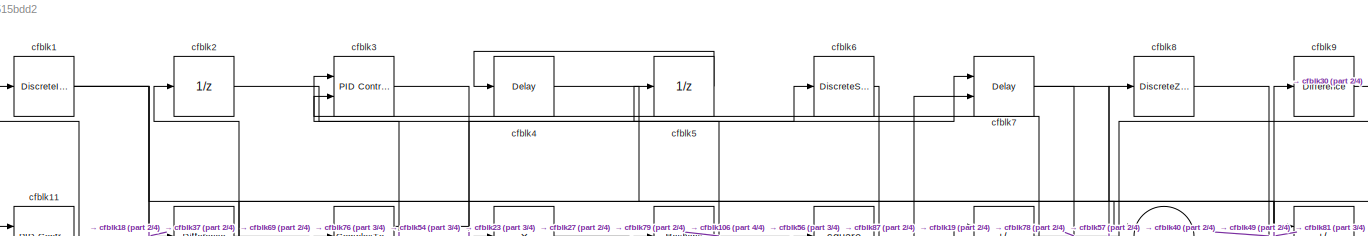
[diagram: root canvas - part 1/4, full width, top band]
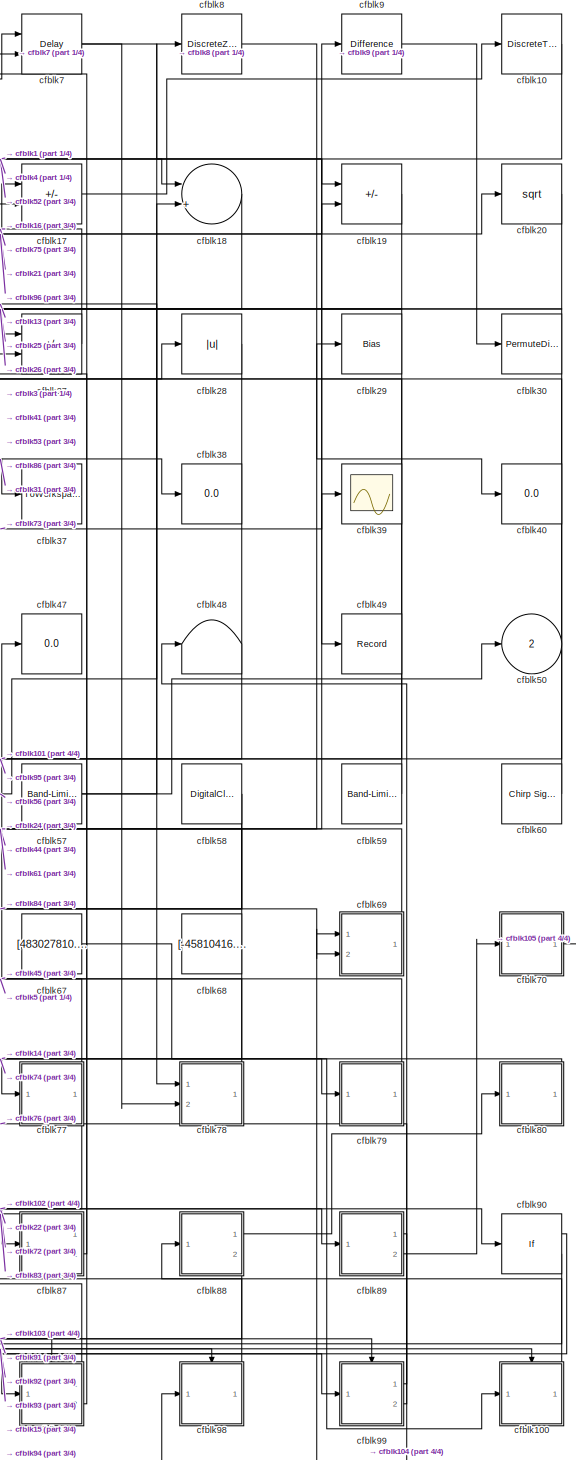
[diagram: root canvas - part 2/4, right side, full height]
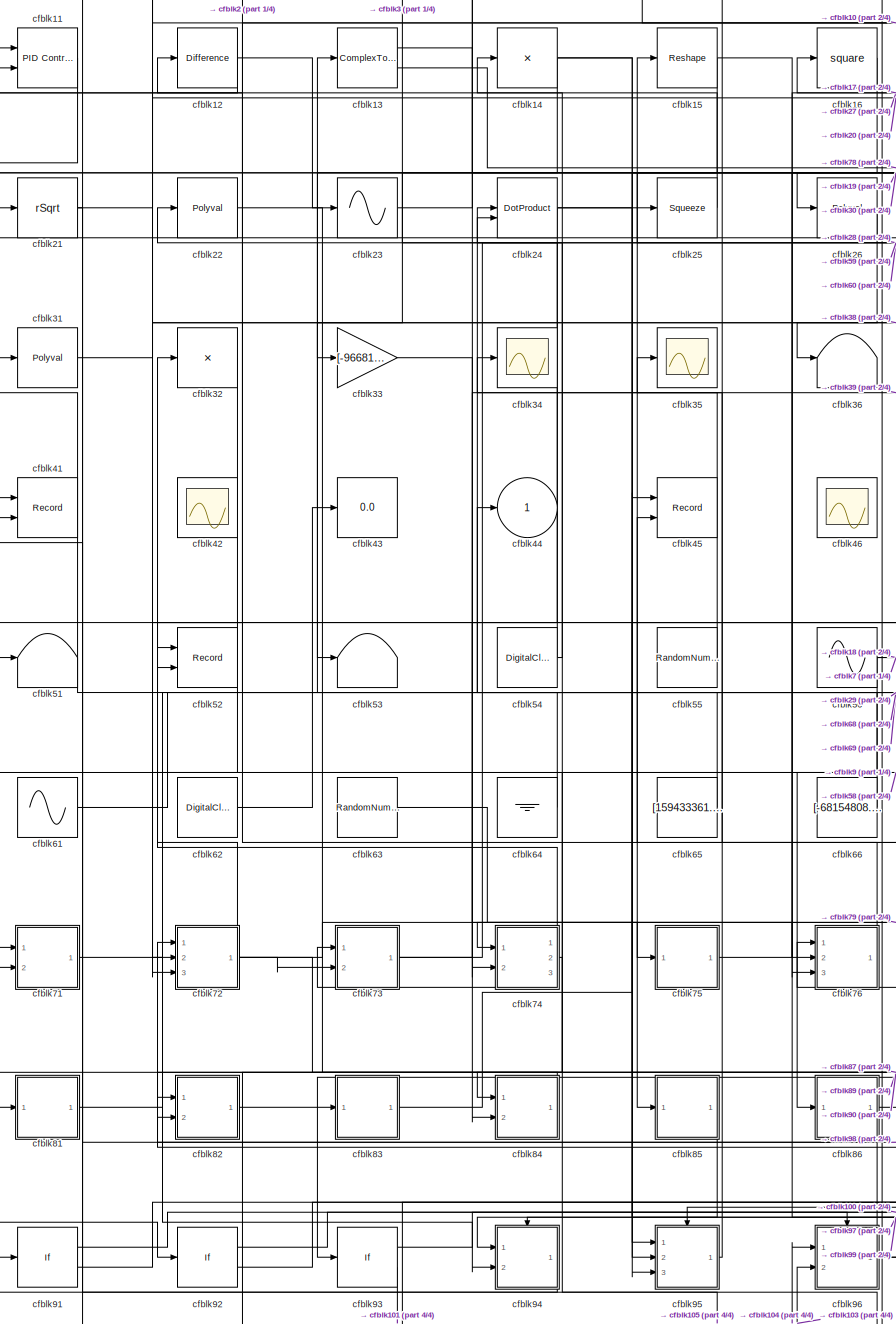
[diagram: root canvas - part 3/4, left side, full height]
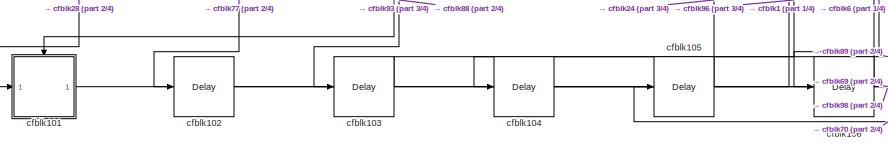
[diagram: root canvas - part 4/4, bottom left region]
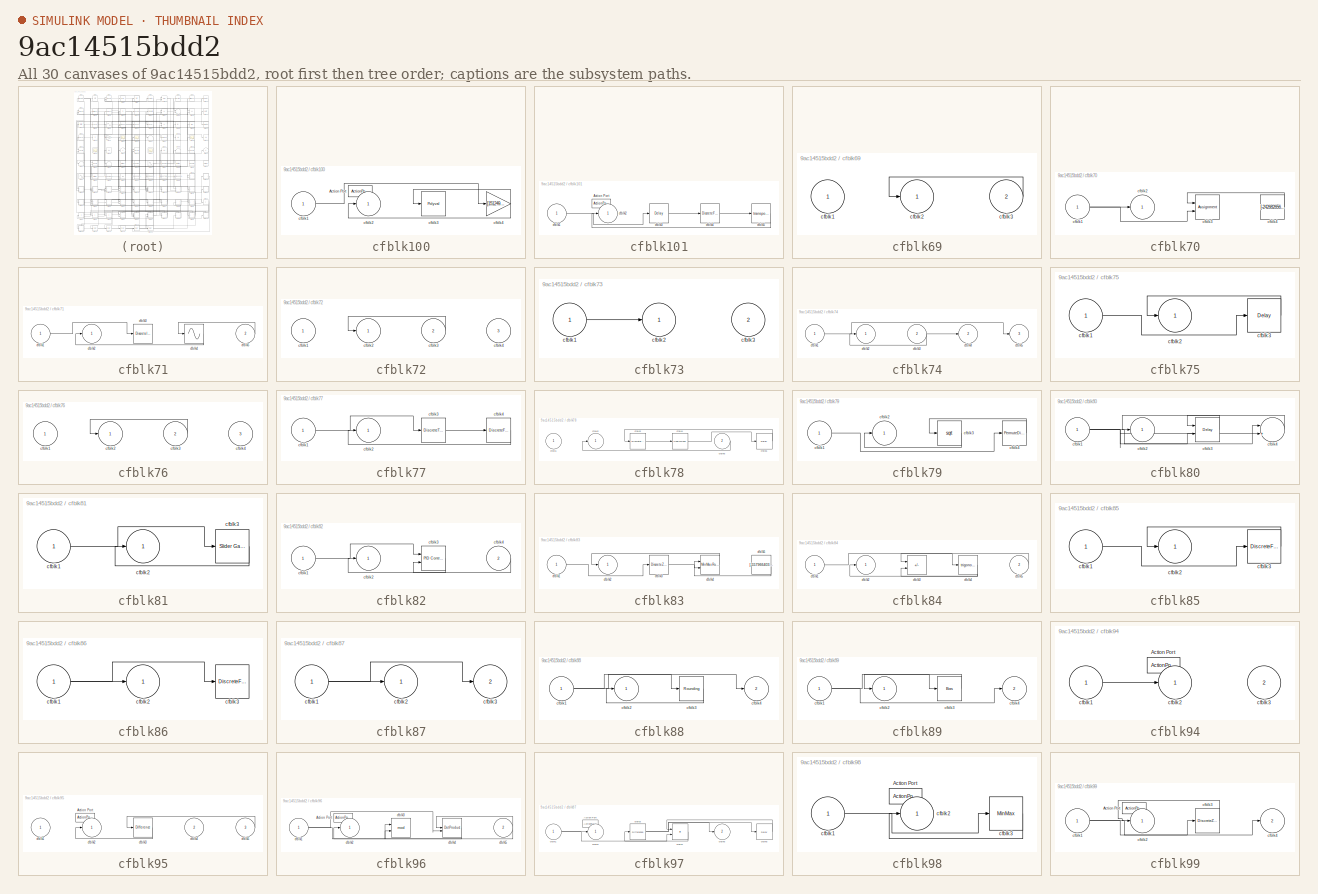
[diagram: thumbnail index - all 30 canvases of the model, root first then tree order]
MODEL slx_9ac14515bdd2
KIND model
CONFIG AbsTol = auto
CONFIG EnableMultiTasking = off
CONFIG FixedStep = auto
CONFIG MaxStep = auto
CONFIG MinStep = auto
CONFIG RelTol = 1e-3
CONFIG SampleTimeConstraint = Unconstrained
CONFIG SolverName = VariableStepAuto
CONFIG StartTime = 0.0
CONFIG StopTime = 10.0
BLOCK [DiscreteIntegrator] cfblk1
  ICPrevOutput = DiscIntNeverNeededParam
  ICPrevScaledInput = DiscIntNeverNeededParam
  InitialConditionSetting = Auto
  Ports = [1, 1]
BLOCK [DiscreteTransferFcn] cfblk10
  InputPortMap = u0
  Ports = [1, 1]
  SampleTime = 1
BLOCK [SubSystem] cfblk100
  Ports = [1, 1, 0, 0, 0, 0, 0, 1]
  RequestExecContextInheritance = off
  TreatAsAtomicUnit = on
BLOCK [ActionPort] cfblk100/Action Port
  ActionPortLabel = if(u1 >= 0)
BLOCK [Inport] cfblk100/cfblk1
BLOCK [Outport] cfblk100/cfblk2
BLOCK [Polyval] cfblk100/cfblk3
  Coefs = [ +2.081618890e-019, -1.441693666e-014, +4.719686976e-010, -8.536869453e-006, +1.621573104e-001, -8.087801117e+001 ]
BLOCK [Gain] cfblk100/cfblk4
  Gain = [151249803.852213]
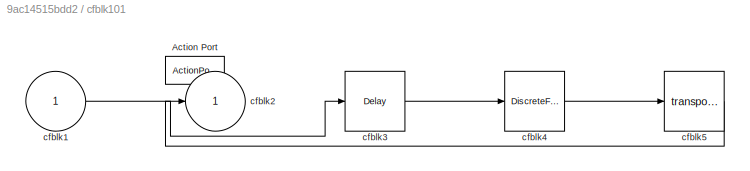
BLOCK [SubSystem] cfblk101
  Ports = [1, 1, 0, 0, 0, 0, 0, 1]
  RequestExecContextInheritance = off
  TreatAsAtomicUnit = on
BLOCK [ActionPort] cfblk101/Action Port
  ActionPortLabel = else
BLOCK [Inport] cfblk101/cfblk1
BLOCK [Outport] cfblk101/cfblk2
BLOCK [Delay] cfblk101/cfblk3
  InputPortMap = u0
  Ports = [1, 1]
BLOCK [DiscreteFilter] cfblk101/cfblk4
  InputPortMap = u0
  Ports = [1, 1]
BLOCK [Math] cfblk101/cfblk5
  Operator = transpose
  Ports = [1, 1]
BLOCK [Delay] cfblk102
  InputPortMap = u0
  Ports = [1, 1]
  SampleTime = 1
BLOCK [Delay] cfblk103
  InputPortMap = u0
  Ports = [1, 1]
  SampleTime = 1
BLOCK [Delay] cfblk104
  InputPortMap = u0
  Ports = [1, 1]
  SampleTime = 1
BLOCK [Delay] cfblk105
  InputPortMap = u0
  Ports = [1, 1]
  SampleTime = 1
BLOCK [Delay] cfblk106
  InputPortMap = u0
  Ports = [1, 1]
  SampleTime = 1
BLOCK [Reference] cfblk11  REF=slpidlib/PID Controller (2DOF)
  Ports = [2, 1]
  SourceBlock = slpidlib/PID Controller (2DOF)
  SourceProductBaseCode = SL
  SourceType = PID 2dof
BLOCK [Reference] cfblk12  REF=simulink/Discrete/Difference
  Ports = [1, 1]
  SourceBlock = simulink/Discrete/Difference
  SourceProductBaseCode = SL
  SourceType = Difference
BLOCK [ComplexToRealImag] cfblk13
  Ports = [1, 2]
BLOCK [Product] cfblk14
  Inputs = *
  Ports = [1, 1]
BLOCK [Reshape] cfblk15
  Ports = [1, 1]
BLOCK [Math] cfblk16
  Operator = square
  Ports = [1, 1]
BLOCK [Sum] cfblk17
  IconShape = rectangular
  Inputs = +-
  Ports = [2, 1]
BLOCK [Sum] cfblk18
  Inputs = |++
  Ports = [2, 1]
BLOCK [Sum] cfblk19
  IconShape = rectangular
  Inputs = +-
  Ports = [2, 1]
BLOCK [UnitDelay] cfblk2
  HasFrameUpgradeWarning = on
BLOCK [Sqrt] cfblk20
BLOCK [Sqrt] cfblk21
  AlgorithmType = Newton-Raphson
  Operator = rSqrt
BLOCK [Polyval] cfblk22
  Coefs = [ +2.081618890e-019, -1.441693666e-014, +4.719686976e-010, -8.536869453e-006, +1.621573104e-001, -8.087801117e+001 ]
BLOCK [Sin] cfblk23
  Ports = [1, 1]
  SampleTime = 0
  TimeSource = Use external signal
BLOCK [DotProduct] cfblk24
  OutDataTypeStr = Inherit: Inherit via internal rule
BLOCK [Squeeze] cfblk25
BLOCK [Polyval] cfblk26
  Coefs = [ +2.081618890e-019, -1.441693666e-014, +4.719686976e-010, -8.536869453e-006, +1.621573104e-001, -8.087801117e+001 ]
BLOCK [Sum] cfblk27
  IconShape = rectangular
  Inputs = +-
  Ports = [2, 1]
BLOCK [Abs] cfblk28
  SaturateOnIntegerOverflow = off
BLOCK [Bias] cfblk29
  Bias = [873647244.687193]
  SaturateOnIntegerOverflow = off
BLOCK [Reference] cfblk3  REF=slpidlib/PID Controller (2DOF)
  Ports = [2, 1]
  SourceBlock = slpidlib/PID Controller (2DOF)
  SourceProductBaseCode = SL
  SourceType = PID 2dof
BLOCK [PermuteDimensions] cfblk30
BLOCK [Polyval] cfblk31
  Coefs = [ +2.081618890e-019, -1.441693666e-014, +4.719686976e-010, -8.536869453e-006, +1.621573104e-001, -8.087801117e+001 ]
BLOCK [Product] cfblk32
  Inputs = *
  Ports = [1, 1]
BLOCK [Gain] cfblk33
  Gain = [-96681866.756885]
BLOCK [Scope] cfblk34
  Floating = off
  NumInputPorts = 1
  Ports = [1]
BLOCK [Scope] cfblk35
  Floating = off
  NumInputPorts = 1
  Ports = [1]
BLOCK [Terminator] cfblk36
BLOCK [ToWorkspace] cfblk37
  FixptAsFi = on
  MaxDataPoints = inf
  Ports = [1]
  SampleTime = -1
  SaveFormat = Timeseries
  VariableName = dttvtfs
BLOCK [Display] cfblk38
  Decimation = 1
  Ports = [1]
BLOCK [Scope] cfblk39
  Floating = off
  NumInputPorts = 1
  Ports = [1]
BLOCK [Delay] cfblk4
  InputPortMap = u0
  Ports = [1, 1]
  SampleTime = 1
BLOCK [Display] cfblk40
  Decimation = 1
  Ports = [1]
BLOCK [Record] cfblk41
  CompatibilityTag = XY
  FileSettingsInternal = {"entries":[{"content":{"excelSettings":{"content":{},"type":"Streamout.ExcelSettings"}},"type":"Streamout.FileSettingStorage","uuid":"677ef7f0-aff7-4f23-a399-6c1ba6bb11ad"}],"packageUris":["http://schema.mathworks.com/mf0/streamout_blocks/R2020a"],"version":"1.0"}
  Layout = [1 1]
  Ports = [2]
  SignalsInternal = {"entries":[{"content":{"signals":[{"content":{"blockPath":["sampleModel149/cfblk41"],"channel":[],"dimensions":[1],"domain":"sampleModel149/cfblk41","lineColor":"#a2142f","plots":[1],"port":1,"sid":[""],"signalID":5432,"signalName":"cfblk19"},"type":"RecordBlkView.Signal","uuid":"c9c64e99-b97b-4934-8607-4a52140b3292"},{"content":{"blockPath":["sampleModel149/cfblk41"],"channel":[],"dimensions":[1...<+385ch>
  VisualizationBindings = {"xyplotplugin":{"info":[{"series":[{"bindingParametersList":[{"parameter":"X-Axis","signalID":5432,"signalName":"cfblk19"},{"parameter":"Y-Axis","signalID":5436,"signalName":"cfblk98"}],"seriesID":11011}],"subplotID":1}]}}
BLOCK [Scope] cfblk42
  Floating = on
  NumInputPorts = 1
  Ports = []
BLOCK [Display] cfblk43
  Decimation = 1
  Ports = [1]
BLOCK [Outport] cfblk44
BLOCK [Record] cfblk45
  CompatibilityTag = XY
  FileSettingsInternal = {"entries":[{"content":{"excelSettings":{"content":{},"type":"Streamout.ExcelSettings"}},"type":"Streamout.FileSettingStorage","uuid":"1409c736-9582-47b9-9387-f52cb0728f9d"}],"packageUris":["http://schema.mathworks.com/mf0/streamout_blocks/R2020a"],"version":"1.0"}
  Layout = [1 1]
  Ports = [2]
  SignalsInternal = {"entries":[{"content":{"signals":[{"content":{"blockPath":["sampleModel149/cfblk45"],"channel":[],"dimensions":[1],"domain":"sampleModel149/cfblk45","lineColor":"#a2142f","plots":[1],"port":1,"sid":[""],"signalID":5440,"signalName":"cfblk83"},"type":"RecordBlkView.Signal","uuid":"fdb62399-27ef-4b59-8b56-8b24fd231024"},{"content":{"blockPath":["sampleModel149/cfblk45"],"channel":[],"dimensions":[1...<+383ch>
  VisualizationBindings = {"xyplotplugin":{"info":[{"series":[{"bindingParametersList":[{"parameter":"X-Axis","signalID":5440,"signalName":"cfblk83"},{"parameter":"Y-Axis","signalID":5444,"signalName":"cfblk78"}],"seriesID":23420}],"subplotID":1}]}}
BLOCK [Scope] cfblk46
  Floating = on
  NumInputPorts = 1
  Ports = []
BLOCK [Display] cfblk47
  Decimation = 1
  Ports = [1]
BLOCK [Terminator] cfblk48
BLOCK [Record] cfblk49
  FileSettingsInternal = {"entries":[{"content":{"excelSettings":{"content":{},"type":"Streamout.ExcelSettings"}},"type":"Streamout.FileSettingStorage","uuid":"623240cd-226e-4570-abce-ef017ed00bb4"}],"packageUris":["http://schema.mathworks.com/mf0/streamout_blocks/R2020a"],"version":"1.0"}
  Ports = [1]
  SignalsInternal = {"entries":[{"content":{"signals":[{"content":{"blockPath":["sampleModel149/cfblk49"],"channel":[],"dimensions":[1,1],"domain":"sampleModel149/cfblk49","lineColor":"#b746ff","plots":[1],"port":1,"sid":[""],"signalID":5448,"signalName":"cfblk4"},"type":"RecordBlkView.Signal","uuid":"dca9496e-cca6-4e71-bce4-3e747afdf648"}]},"type":"RecordBlkView.InputSignals","uuid":"d1a2848c-7443-4a4c-8c65-2b393a39...<+98ch>
  VisualizationBindings = {"sparklinesplugin":{"info":[{"bindingParametersList":[],"subplotID":1}]}}
BLOCK [UnitDelay] cfblk5
  HasFrameUpgradeWarning = on
BLOCK [Outport] cfblk50
  Port = 2
BLOCK [Terminator] cfblk51
BLOCK [Record] cfblk52
  CompatibilityTag = XY
  FileSettingsInternal = {"entries":[{"content":{"excelSettings":{"content":{},"type":"Streamout.ExcelSettings"}},"type":"Streamout.FileSettingStorage","uuid":"783af22f-5e4b-4910-9486-9e25a4d682cd"}],"packageUris":["http://schema.mathworks.com/mf0/streamout_blocks/R2020a"],"version":"1.0"}
  Layout = [1 1]
  Ports = [2]
  SignalsInternal = {"entries":[{"content":{"signals":[{"content":{"blockPath":["sampleModel149/cfblk52"],"channel":[],"dimensions":[1],"domain":"sampleModel149/cfblk52","lineColor":"#a2142f","plots":[1],"port":1,"sid":[""],"signalID":5452,"signalName":"cfblk10"},"type":"RecordBlkView.Signal","uuid":"96ba5218-7d5b-45e8-8273-5adbd7f1b230"},{"content":{"blockPath":["sampleModel149/cfblk52"],"channel":[],"dimensions":[1...<+383ch>
  VisualizationBindings = {"xyplotplugin":{"info":[{"series":[{"bindingParametersList":[{"parameter":"X-Axis","signalID":5452,"signalName":"cfblk10"},{"parameter":"Y-Axis","signalID":5456,"signalName":"cfblk72"}],"seriesID":36571}],"subplotID":1}]}}
BLOCK [Terminator] cfblk53
BLOCK [DigitalClock] cfblk54
BLOCK [RandomNumber] cfblk55
  Mean = [12730.939790]
  SampleTime = 0.1
  Seed = [917276166.000000]
  Variance = [38106.151862]
BLOCK [Sin] cfblk56
  Amplitude = [-539187090.809875]
  Bias = [865771943.360757]
  Ports = [0, 1]
  SampleTime = 0
BLOCK [Reference] cfblk57  REF=simulink/Sources/Band-Limited
White Noise
  Ports = [0, 1]
  SourceBlock = simulink/Sources/Band-Limited\nWhite Noise
  SourceProductBaseCode = SL
  SourceType = Band-Limited White Noise.
BLOCK [DigitalClock] cfblk58
BLOCK [Reference] cfblk59  REF=simulink/Sources/Band-Limited
White Noise
  Ports = [0, 1]
  SourceBlock = simulink/Sources/Band-Limited\nWhite Noise
  SourceProductBaseCode = SL
  SourceType = Band-Limited White Noise.
BLOCK [DiscreteStateSpace] cfblk6
BLOCK [Reference] cfblk60  REF=simulink/Sources/Chirp Signal
  Ports = [0, 1]
  SourceBlock = simulink/Sources/Chirp Signal
  SourceProductBaseCode = SL
  SourceType = chirp
BLOCK [Sin] cfblk61
  Amplitude = [546175675.773895]
  Bias = [-136841052.447450]
  Ports = [0, 1]
  SampleTime = 0
BLOCK [DigitalClock] cfblk62
BLOCK [RandomNumber] cfblk63
  Mean = [-24942.890571]
  SampleTime = 0.1
  Seed = [271279025.000000]
  Variance = [22742.277888]
BLOCK [Ground] cfblk64
BLOCK [Constant] cfblk65
  SampleTime = 1
  Value = [159433361.303930]
BLOCK [Constant] cfblk66
  SampleTime = 1
  Value = [-68154808.636030]
BLOCK [Constant] cfblk67
  SampleTime = 1
  Value = [483027810.709244]
BLOCK [Constant] cfblk68
  SampleTime = 1
  Value = [-45810416.157791]
BLOCK [SubSystem] cfblk69
  Ports = [2, 1]
  RequestExecContextInheritance = off
BLOCK [Inport] cfblk69/cfblk1
BLOCK [Outport] cfblk69/cfblk2
BLOCK [Inport] cfblk69/cfblk3
  Port = 2
BLOCK [Delay] cfblk7
  DelayLengthSource = Input port
  InputPortMap = u0,p1
  Ports = [2, 1]
  SampleTime = 1
BLOCK [SubSystem] cfblk70
  Ports = [1, 1]
  RequestExecContextInheritance = off
BLOCK [Inport] cfblk70/cfblk1
BLOCK [Outport] cfblk70/cfblk2
BLOCK [Assignment] cfblk70/cfblk3
  DiagnosticForDimensions = Warning
  IndexOptions = Index vector (dialog)
  Indices = 1
  OutputSizes = 1
  Ports = [2, 1]
BLOCK [Constant] cfblk70/cfblk4
  SampleTime = 1
  Value = [-242682656.230599]
BLOCK [SubSystem] cfblk71
  Ports = [2, 1]
  RequestExecContextInheritance = off
BLOCK [Inport] cfblk71/cfblk1
BLOCK [Outport] cfblk71/cfblk2
BLOCK [DiscreteIntegrator] cfblk71/cfblk3
  ICPrevOutput = DiscIntNeverNeededParam
  ICPrevScaledInput = DiscIntNeverNeededParam
  InitialConditionSetting = Auto
  Ports = [1, 1]
BLOCK [Sin] cfblk71/cfblk4
  Ports = [1, 1]
  SampleTime = 0
  TimeSource = Use external signal
BLOCK [Inport] cfblk71/cfblk5
  Port = 2
BLOCK [SubSystem] cfblk72
  Ports = [3, 1]
  RequestExecContextInheritance = off
BLOCK [Inport] cfblk72/cfblk1
BLOCK [Outport] cfblk72/cfblk2
BLOCK [Inport] cfblk72/cfblk3
  Port = 2
BLOCK [Inport] cfblk72/cfblk4
  Port = 3
BLOCK [SubSystem] cfblk73
  Ports = [2, 1]
  RequestExecContextInheritance = off
BLOCK [Inport] cfblk73/cfblk1
BLOCK [Outport] cfblk73/cfblk2
BLOCK [Inport] cfblk73/cfblk3
  Port = 2
BLOCK [SubSystem] cfblk74
  Ports = [2, 3]
  RequestExecContextInheritance = off
BLOCK [Inport] cfblk74/cfblk1
BLOCK [Outport] cfblk74/cfblk2
BLOCK [Inport] cfblk74/cfblk3
  Port = 2
BLOCK [Outport] cfblk74/cfblk4
  Port = 2
BLOCK [Outport] cfblk74/cfblk5
  Port = 3
BLOCK [SubSystem] cfblk75
  Ports = [1, 1]
  RequestExecContextInheritance = off
BLOCK [Inport] cfblk75/cfblk1
BLOCK [Outport] cfblk75/cfblk2
BLOCK [Delay] cfblk75/cfblk3
  InputPortMap = u0
  Ports = [1, 1]
  SampleTime = 1
BLOCK [SubSystem] cfblk76
  Ports = [3, 1]
  RequestExecContextInheritance = off
BLOCK [Inport] cfblk76/cfblk1
BLOCK [Outport] cfblk76/cfblk2
BLOCK [Inport] cfblk76/cfblk3
  Port = 2
BLOCK [Inport] cfblk76/cfblk4
  Port = 3
BLOCK [SubSystem] cfblk77
  Ports = [1, 1]
  RequestExecContextInheritance = off
BLOCK [Inport] cfblk77/cfblk1
BLOCK [Outport] cfblk77/cfblk2
BLOCK [DiscreteTransferFcn] cfblk77/cfblk3
  InputPortMap = u0
  Ports = [1, 1]
  SampleTime = 1
BLOCK [DiscreteFilter] cfblk77/cfblk4
  InputPortMap = u0
  Ports = [1, 1]
  SampleTime = 1
BLOCK [SubSystem] cfblk78
  Ports = [2, 1]
  RequestExecContextInheritance = off
BLOCK [Inport] cfblk78/cfblk1
BLOCK [Outport] cfblk78/cfblk2
BLOCK [DiscreteIntegrator] cfblk78/cfblk3
  ICPrevOutput = DiscIntNeverNeededParam
  ICPrevScaledInput = DiscIntNeverNeededParam
  InitialConditionSetting = Auto
  Ports = [1, 1]
BLOCK [UnaryMinus] cfblk78/cfblk4
BLOCK [Inport] cfblk78/cfblk5
  Port = 2
BLOCK [Delay] cfblk78/cfblk6
  InputPortMap = u0
  Ports = [1, 1]
  SampleTime = 1
BLOCK [SubSystem] cfblk79
  Ports = [1, 1]
  RequestExecContextInheritance = off
BLOCK [Inport] cfblk79/cfblk1
BLOCK [Outport] cfblk79/cfblk2
BLOCK [Sqrt] cfblk79/cfblk3
BLOCK [PermuteDimensions] cfblk79/cfblk4
BLOCK [DiscreteZeroPole] cfblk8
  Gain = 1
  Poles = [0 0.5]
BLOCK [SubSystem] cfblk80
  Ports = [1, 1]
  RequestExecContextInheritance = off
BLOCK [Inport] cfblk80/cfblk1
BLOCK [Outport] cfblk80/cfblk2
BLOCK [Delay] cfblk80/cfblk3
  DelayLengthSource = Input port
  InputPortMap = u0,p1
  Ports = [2, 1]
  SampleTime = 1
BLOCK [Sum] cfblk80/cfblk4
  Inputs = |++
  Ports = [2, 1]
BLOCK [SubSystem] cfblk81
  Ports = [1, 1]
  RequestExecContextInheritance = off
BLOCK [Inport] cfblk81/cfblk1
BLOCK [Outport] cfblk81/cfblk2
BLOCK [Reference] cfblk81/cfblk3  REF=simulink/Math
Operations/Slider
Gain
  Ports = [1, 1]
  SourceBlock = simulink/Math\nOperations/Slider\nGain
  SourceProductBaseCode = SL
  SourceType = Slider Gain
BLOCK [SubSystem] cfblk82
  Ports = [2, 1]
  RequestExecContextInheritance = off
BLOCK [Inport] cfblk82/cfblk1
BLOCK [Outport] cfblk82/cfblk2
BLOCK [Reference] cfblk82/cfblk3  REF=slpidlib/PID Controller (2DOF)
  Ports = [2, 1]
  SourceBlock = slpidlib/PID Controller (2DOF)
  SourceProductBaseCode = SL
  SourceType = PID 2dof
BLOCK [Inport] cfblk82/cfblk4
  Port = 2
BLOCK [SubSystem] cfblk83
  Ports = [1, 1]
  RequestExecContextInheritance = off
BLOCK [Inport] cfblk83/cfblk1
BLOCK [Outport] cfblk83/cfblk2
BLOCK [DiscreteZeroPole] cfblk83/cfblk3
  Gain = 1
  Poles = [0 0.5]
BLOCK [Reference] cfblk83/cfblk4  REF=simulink/Math
Operations/MinMax
Running
Resettable
  Ports = [2, 1]
  SourceBlock = simulink/Math\nOperations/MinMax\nRunning\nResettable
  SourceProductBaseCode = SL
  SourceType = MinMax Running Resettable
BLOCK [Constant] cfblk83/cfblk5
  SampleTime = 1
  Value = [-557966403.366315]
BLOCK [SubSystem] cfblk84
  Ports = [2, 1]
  RequestExecContextInheritance = off
BLOCK [Inport] cfblk84/cfblk1
BLOCK [Outport] cfblk84/cfblk2
BLOCK [Sum] cfblk84/cfblk3
  IconShape = rectangular
  Inputs = --
  Ports = [2, 1]
BLOCK [Trigonometry] cfblk84/cfblk4
  Ports = [1, 1]
BLOCK [Inport] cfblk84/cfblk5
  Port = 2
BLOCK [SubSystem] cfblk85
  Ports = [1, 1]
  RequestExecContextInheritance = off
BLOCK [Inport] cfblk85/cfblk1
BLOCK [Outport] cfblk85/cfblk2
BLOCK [DiscreteFir] cfblk85/cfblk3
  InputPortMap = u0
  OutputPortMap = o0
  Ports = [1, 1]
  SampleTime = 1
BLOCK [SubSystem] cfblk86
  Ports = [1, 1]
  RequestExecContextInheritance = off
BLOCK [Inport] cfblk86/cfblk1
BLOCK [Outport] cfblk86/cfblk2
BLOCK [DiscreteFir] cfblk86/cfblk3
  InputPortMap = u0
  OutputPortMap = o0
  Ports = [1, 1]
  SampleTime = 1
BLOCK [SubSystem] cfblk87
  Ports = [1, 2]
  RequestExecContextInheritance = off
BLOCK [Inport] cfblk87/cfblk1
BLOCK [Outport] cfblk87/cfblk2
BLOCK [Outport] cfblk87/cfblk3
  Port = 2
BLOCK [SubSystem] cfblk88
  Ports = [1, 2]
  RequestExecContextInheritance = off
BLOCK [Inport] cfblk88/cfblk1
BLOCK [Outport] cfblk88/cfblk2
BLOCK [Rounding] cfblk88/cfblk3
BLOCK [Outport] cfblk88/cfblk4
  Port = 2
BLOCK [SubSystem] cfblk89
  Ports = [1, 2]
  RequestExecContextInheritance = off
BLOCK [Inport] cfblk89/cfblk1
BLOCK [Outport] cfblk89/cfblk2
BLOCK [Bias] cfblk89/cfblk3
  Bias = [-688995450.295164]
  SaturateOnIntegerOverflow = off
BLOCK [Outport] cfblk89/cfblk4
  Port = 2
BLOCK [Reference] cfblk9  REF=simulink/Discrete/Difference
  Ports = [1, 1]
  SourceBlock = simulink/Discrete/Difference
  SourceProductBaseCode = SL
  SourceType = Difference
BLOCK [If] cfblk90
  IfExpression = u1 >= 0
  Ports = [1, 2]
  SampleTime = 1
BLOCK [If] cfblk91
  IfExpression = u1 >= 0
  Ports = [1, 2]
  SampleTime = 1
BLOCK [If] cfblk92
  IfExpression = u1 >= 0
  Ports = [1, 2]
  SampleTime = 1
BLOCK [If] cfblk93
  IfExpression = u1 >= 0
  Ports = [1, 2]
  SampleTime = 1
BLOCK [SubSystem] cfblk94
  Ports = [2, 1, 0, 0, 0, 0, 0, 1]
  RequestExecContextInheritance = off
  TreatAsAtomicUnit = on
BLOCK [ActionPort] cfblk94/Action Port
  ActionPortLabel = if(u1 >= 0)
BLOCK [Inport] cfblk94/cfblk1
BLOCK [Outport] cfblk94/cfblk2
BLOCK [Inport] cfblk94/cfblk3
  Port = 2
BLOCK [SubSystem] cfblk95
  Ports = [3, 1, 0, 0, 0, 0, 0, 1]
  RequestExecContextInheritance = off
  TreatAsAtomicUnit = on
BLOCK [ActionPort] cfblk95/Action Port
  ActionPortLabel = else
BLOCK [Inport] cfblk95/cfblk1
BLOCK [Outport] cfblk95/cfblk2
BLOCK [Reference] cfblk95/cfblk3  REF=simulink/Discrete/Difference
  Ports = [1, 1]
  SourceBlock = simulink/Discrete/Difference
  SourceProductBaseCode = SL
  SourceType = Difference
BLOCK [Inport] cfblk95/cfblk4
  Port = 2
BLOCK [Inport] cfblk95/cfblk5
  Port = 3
BLOCK [SubSystem] cfblk96
  Ports = [2, 1, 0, 0, 0, 0, 0, 1]
  RequestExecContextInheritance = off
  TreatAsAtomicUnit = on
BLOCK [ActionPort] cfblk96/Action Port
  ActionPortLabel = if(u1 >= 0)
BLOCK [Inport] cfblk96/cfblk1
BLOCK [Outport] cfblk96/cfblk2
BLOCK [Math] cfblk96/cfblk3
  Operator = mod
  Ports = [2, 1]
BLOCK [DotProduct] cfblk96/cfblk4
  OutDataTypeStr = Inherit: Inherit via internal rule
BLOCK [Inport] cfblk96/cfblk5
  Port = 2
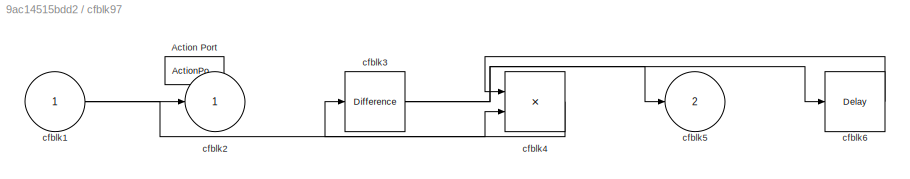
BLOCK [SubSystem] cfblk97
  Ports = [1, 2, 0, 0, 0, 0, 0, 1]
  RequestExecContextInheritance = off
  TreatAsAtomicUnit = on
BLOCK [ActionPort] cfblk97/Action Port
  ActionPortLabel = else
BLOCK [Inport] cfblk97/cfblk1
BLOCK [Outport] cfblk97/cfblk2
BLOCK [Reference] cfblk97/cfblk3  REF=simulink/Discrete/Difference
  Ports = [1, 1]
  SourceBlock = simulink/Discrete/Difference
  SourceProductBaseCode = SL
  SourceType = Difference
BLOCK [Product] cfblk97/cfblk4
  Ports = [2, 1]
BLOCK [Outport] cfblk97/cfblk5
  Port = 2
BLOCK [Delay] cfblk97/cfblk6
  InputPortMap = u0
  Ports = [1, 1]
BLOCK [SubSystem] cfblk98
  Ports = [1, 1, 0, 0, 0, 0, 0, 1]
  RequestExecContextInheritance = off
  TreatAsAtomicUnit = on
BLOCK [ActionPort] cfblk98/Action Port
  ActionPortLabel = if(u1 >= 0)
BLOCK [Inport] cfblk98/cfblk1
BLOCK [Outport] cfblk98/cfblk2
BLOCK [MinMax] cfblk98/cfblk3
  Function = max
  Ports = [1, 1]
BLOCK [SubSystem] cfblk99
  Ports = [1, 2, 0, 0, 0, 0, 0, 1]
  RequestExecContextInheritance = off
  TreatAsAtomicUnit = on
BLOCK [ActionPort] cfblk99/Action Port
  ActionPortLabel = else
BLOCK [Inport] cfblk99/cfblk1
BLOCK [Outport] cfblk99/cfblk2
BLOCK [DiscreteZeroPole] cfblk99/cfblk3
  Gain = 1
  Poles = [0 0.5]
  SampleTime = -1
BLOCK [Outport] cfblk99/cfblk4
  Port = 2
LINE cfblk100/cfblk1:1 -> cfblk100/cfblk4:1
NET cfblk100/cfblk4:1 -> cfblk100/cfblk2:1, cfblk100/cfblk3:1
LINE cfblk100:1 -> cfblk88:1
LINE cfblk101/cfblk1:1 -> cfblk101/cfblk3:1
LINE cfblk101/cfblk3:1 -> cfblk101/cfblk4:1
LINE cfblk101/cfblk4:1 -> cfblk101/cfblk5:1
LINE cfblk101/cfblk5:1 -> cfblk101/cfblk2:1
LINE cfblk101:1 -> cfblk98:1
LINE cfblk102:1 -> cfblk69:1
LINE cfblk103:1 -> cfblk96:2
LINE cfblk104:1 -> cfblk96:1
LINE cfblk105:1 -> cfblk24:2
LINE cfblk106:1 -> cfblk1:1
LINE cfblk10:1 -> cfblk52:1
LINE cfblk11:1 -> cfblk92:1
NET cfblk12:1 -> cfblk11:2, cfblk23:1
LINE cfblk13:1 -> cfblk74:2
LINE cfblk13:2 -> cfblk78:1
NET cfblk14:1 -> cfblk71:2, cfblk79:1, cfblk87:1
NET cfblk15:1 -> cfblk95:3, cfblk97:1
LINE cfblk16:1 -> cfblk33:1
LINE cfblk17:1 -> cfblk10:1
LINE cfblk18:1 -> cfblk53:1
LINE cfblk19:1 -> cfblk41:1
NET cfblk1:1 -> cfblk18:1, cfblk37:1, cfblk69:2
LINE cfblk20:1 -> cfblk76:3
NET cfblk21:1 -> cfblk20:1, cfblk51:1
LINE cfblk22:1 -> cfblk90:1
LINE cfblk23:1 -> cfblk7:1
NET cfblk24:1 -> cfblk84:2, cfblk85:1, cfblk99:1
LINE cfblk25:1 -> cfblk11:1
LINE cfblk26:1 -> cfblk36:1
LINE cfblk27:1 -> cfblk16:1
LINE cfblk28:1 -> cfblk101:1
NET cfblk29:1 -> cfblk26:1, cfblk72:2
LINE cfblk2:1 -> cfblk6:1
NET cfblk30:1 -> cfblk25:1, cfblk95:2
LINE cfblk31:1 -> cfblk38:1
LINE cfblk32:1 -> cfblk71:1
LINE cfblk33:1 -> cfblk76:2
LINE cfblk3:1 -> cfblk27:1
LINE cfblk4:1 -> cfblk49:1
NET cfblk54:1 -> cfblk14:1, cfblk3:2
LINE cfblk55:1 -> cfblk34:1
NET cfblk56:1 -> cfblk18:2, cfblk7:2, cfblk86:1
NET cfblk57:1 -> cfblk50:1, cfblk8:1
NET cfblk58:1 -> cfblk72:3, cfblk84:1
LINE cfblk59:1 -> cfblk22:1
LINE cfblk5:1 -> cfblk4:1
LINE cfblk60:1 -> cfblk15:1
LINE cfblk61:1 -> cfblk29:1
LINE cfblk62:1 -> cfblk43:1
LINE cfblk63:1 -> cfblk95:1
LINE cfblk64:1 -> cfblk12:1
LINE cfblk65:1 -> cfblk31:1
LINE cfblk66:1 -> cfblk13:1
LINE cfblk67:1 -> cfblk100:1
NET cfblk68:1 -> cfblk44:1, cfblk74:1
LINE cfblk69/cfblk3:1 -> cfblk69/cfblk2:1
LINE cfblk69:1 -> cfblk24:1
LINE cfblk6:1 -> cfblk106:1
NET cfblk70/cfblk1:1 -> cfblk70/cfblk2:1, cfblk70/cfblk3:2
LINE cfblk70/cfblk4:1 -> cfblk70/cfblk3:1
LINE cfblk70:1 -> cfblk105:1
LINE cfblk71/cfblk1:1 -> cfblk71/cfblk3:1
LINE cfblk71/cfblk4:1 -> cfblk71/cfblk2:1
LINE cfblk71/cfblk5:1 -> cfblk71/cfblk4:1
LINE cfblk71:1 -> cfblk94:2
LINE cfblk72/cfblk3:1 -> cfblk72/cfblk2:1
NET cfblk72:1 -> cfblk52:2, cfblk73:2, cfblk75:1, cfblk89:1
LINE cfblk73/cfblk1:1 -> cfblk73/cfblk2:1
NET cfblk73:1 -> cfblk28:1, cfblk39:1
LINE cfblk74/cfblk1:1 -> cfblk74/cfblk5:1
NET cfblk74/cfblk3:1 -> cfblk74/cfblk2:1, cfblk74/cfblk4:1
LINE cfblk74:1 -> cfblk32:1
LINE cfblk74:2 -> cfblk82:1
LINE cfblk74:3 -> cfblk73:1
LINE cfblk75/cfblk1:1 -> cfblk75/cfblk3:1
LINE cfblk75/cfblk3:1 -> cfblk75/cfblk2:1
LINE cfblk75:1 -> cfblk17:1
LINE cfblk76/cfblk3:1 -> cfblk76/cfblk2:1
LINE cfblk76:1 -> cfblk2:1
LINE cfblk77/cfblk1:1 -> cfblk77/cfblk3:1
LINE cfblk77/cfblk3:1 -> cfblk77/cfblk4:1
LINE cfblk77/cfblk4:1 -> cfblk77/cfblk2:1
NET cfblk77:1 -> cfblk102:1, cfblk47:1
LINE cfblk78/cfblk3:1 -> cfblk78/cfblk4:1
LINE cfblk78/cfblk4:1 -> cfblk78/cfblk6:1
LINE cfblk78/cfblk5:1 -> cfblk78/cfblk2:1
LINE cfblk78/cfblk6:1 -> cfblk78/cfblk3:1
LINE cfblk78:1 -> cfblk45:2
LINE cfblk79/cfblk1:1 -> cfblk79/cfblk4:1
LINE cfblk79/cfblk3:1 -> cfblk79/cfblk2:1
LINE cfblk79/cfblk4:1 -> cfblk79/cfblk3:1
LINE cfblk79:1 -> cfblk5:1
NET cfblk7:1 -> cfblk19:1, cfblk78:2
NET cfblk80/cfblk1:1 -> cfblk80/cfblk3:2, cfblk80/cfblk4:1, cfblk80/cfblk4:2
LINE cfblk80/cfblk3:1 -> cfblk80/cfblk2:1
LINE cfblk80/cfblk4:1 -> cfblk80/cfblk3:1
LINE cfblk80:1 -> cfblk77:1
LINE cfblk81/cfblk1:1 -> cfblk81/cfblk3:1
LINE cfblk81/cfblk3:1 -> cfblk81/cfblk2:1
LINE cfblk81:1 -> cfblk9:1
LINE cfblk82/cfblk1:1 -> cfblk82/cfblk3:1
LINE cfblk82/cfblk3:1 -> cfblk82/cfblk2:1
LINE cfblk82/cfblk4:1 -> cfblk82/cfblk3:2
LINE cfblk82:1 -> cfblk93:1
LINE cfblk83/cfblk1:1 -> cfblk83/cfblk3:1
LINE cfblk83/cfblk3:1 -> cfblk83/cfblk4:2
LINE cfblk83/cfblk4:1 -> cfblk83/cfblk2:1
LINE cfblk83/cfblk5:1 -> cfblk83/cfblk4:1
LINE cfblk83:1 -> cfblk45:1
LINE cfblk84/cfblk1:1 -> cfblk84/cfblk4:1
NET cfblk84/cfblk4:1 -> cfblk84/cfblk2:1, cfblk84/cfblk3:2
LINE cfblk84/cfblk5:1 -> cfblk84/cfblk3:1
LINE cfblk84:1 -> cfblk81:1
LINE cfblk85/cfblk1:1 -> cfblk85/cfblk3:1
LINE cfblk85/cfblk3:1 -> cfblk85/cfblk2:1
LINE cfblk85:1 -> cfblk94:1
NET cfblk86/cfblk1:1 -> cfblk86/cfblk2:1, cfblk86/cfblk3:1
LINE cfblk86:1 -> cfblk27:2
NET cfblk87/cfblk1:1 -> cfblk87/cfblk2:1, cfblk87/cfblk3:1
LINE cfblk87:1 -> cfblk83:1
LINE cfblk87:2 -> cfblk3:1
NET cfblk88/cfblk1:1 -> cfblk88/cfblk3:1, cfblk88/cfblk4:1
LINE cfblk88/cfblk3:1 -> cfblk88/cfblk2:1
LINE cfblk88:1 -> cfblk80:1
LINE cfblk88:2 -> cfblk103:1
NET cfblk89/cfblk1:1 -> cfblk89/cfblk3:1, cfblk89/cfblk4:1
LINE cfblk89/cfblk3:1 -> cfblk89/cfblk2:1
LINE cfblk89:1 -> cfblk104:1
LINE cfblk89:2 -> cfblk70:1
LINE cfblk8:1 -> cfblk40:1
LINE cfblk90:1 -> cfblk94:ifaction
LINE cfblk90:2 -> cfblk95:ifaction
LINE cfblk91:1 -> cfblk96:ifaction
LINE cfblk91:2 -> cfblk97:ifaction
LINE cfblk92:1 -> cfblk98:ifaction
LINE cfblk92:2 -> cfblk99:ifaction
LINE cfblk93:1 -> cfblk100:ifaction
LINE cfblk93:2 -> cfblk101:ifaction
LINE cfblk94/cfblk1:1 -> cfblk94/cfblk2:1
LINE cfblk94:1 -> cfblk91:1
LINE cfblk95/cfblk3:1 -> cfblk95/cfblk2:1
LINE cfblk95/cfblk5:1 -> cfblk95/cfblk3:1
LINE cfblk95:1 -> cfblk35:1
NET cfblk96/cfblk1:1 -> cfblk96/cfblk3:1, cfblk96/cfblk4:2
LINE cfblk96/cfblk4:1 -> cfblk96/cfblk2:1
NET cfblk96/cfblk5:1 -> cfblk96/cfblk3:2, cfblk96/cfblk4:1
NET cfblk96:1 -> cfblk17:2, cfblk19:2, cfblk82:2
NET cfblk97/cfblk1:1 -> cfblk97/cfblk2:1, cfblk97/cfblk4:2
NET cfblk97/cfblk3:1 -> cfblk97/cfblk5:1, cfblk97/cfblk6:1
LINE cfblk97/cfblk4:1 -> cfblk97/cfblk3:1
LINE cfblk97/cfblk6:1 -> cfblk97/cfblk4:1
LINE cfblk97:1 -> cfblk72:1
LINE cfblk97:2 -> cfblk21:1
LINE cfblk98/cfblk1:1 -> cfblk98/cfblk3:1
LINE cfblk98/cfblk3:1 -> cfblk98/cfblk2:1
LINE cfblk98:1 -> cfblk41:2
NET cfblk99/cfblk1:1 -> cfblk99/cfblk3:1, cfblk99/cfblk4:1
LINE cfblk99/cfblk3:1 -> cfblk99/cfblk2:1
LINE cfblk99:1 -> cfblk48:1
LINE cfblk99:2 -> cfblk76:1
LINE cfblk9:1 -> cfblk30:1
note: NET lines group one-source signal fan-out (src -> all destinations, sorted); 1:1 wires keep LINE
